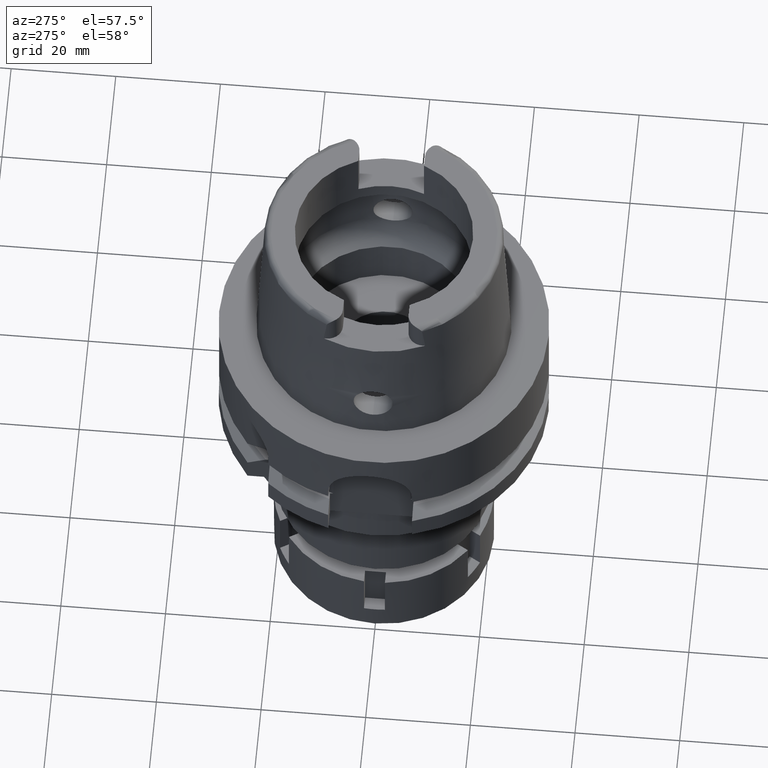
[diagram: clean part render]
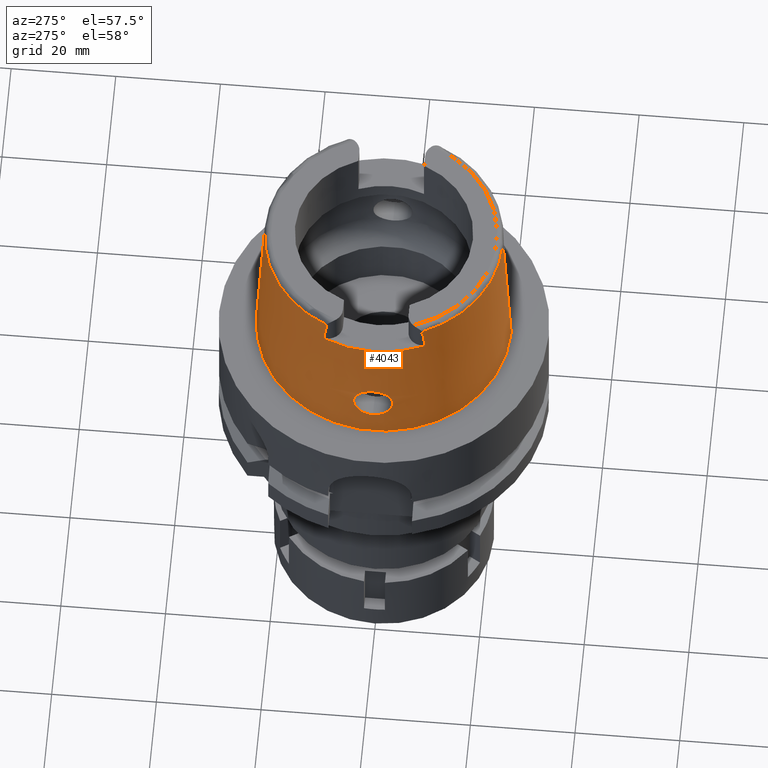
[diagram: same view with one face highlighted and labeled with its STEP entity id]
A machine part, auxiliary view. The second image highlights one B-rep face of the part: STEP entity #4043.
In plain terms, the highlighted conical surface has half-angle 2.862 deg.
Its self-contained STEP definition (entity closure, byte-faithful):
#27 = CARTESIAN_POINT ( 'NONE',  ( -23.59775797373913164, 2.427745545326599697, 11.85872722447998839 ) ) ;
#46 = CARTESIAN_POINT ( 'NONE',  ( -24.01190689559296487, -1.213919353043889204, 5.450948965164590376 ) ) ;
#62 = CIRCLE ( 'NONE', #866, 22.77198729362000407 ) ;
#80 = CARTESIAN_POINT ( 'NONE',  ( -23.69989770741069179, -3.406293780692954964, 7.431356053151114693 ) ) ;
#90 = CARTESIAN_POINT ( 'NONE',  ( -23.74869508637540605, 3.197769567628280907, 7.040704936146632065 ) ) ;
#100 = EDGE_LOOP ( 'NONE', ( #2054, #4834 ) ) ;
#108 = CARTESIAN_POINT ( 'NONE',  ( -23.54847303868381658, -3.728827836116629602, 9.467165310350663887 ) ) ;
#120 = CARTESIAN_POINT ( 'NONE',  ( -23.72480041490275937, 3.304328769427332890, 7.225829393539422441 ) ) ;
#134 = CARTESIAN_POINT ( 'NONE',  ( -23.92680087185595994, -2.112412527555870945, 5.899148787356807588 ) ) ;
#145 = CARTESIAN_POINT ( 'NONE',  ( -23.68040188426764914, 3.480546583495485624, 7.604162284873551947 ) ) ;
#171 = CARTESIAN_POINT ( 'NONE',  ( -23.54104556369676970, -3.659563287467198833, 9.827690557920400138 ) ) ;
#180 = CARTESIAN_POINT ( 'NONE',  ( -23.56641196841126629, 3.749853886215788634, 9.043351990039024457 ) ) ;
#201 = CARTESIAN_POINT ( 'NONE',  ( -23.91360907257481117, -2.217963938808438673, 5.973233638005119417 ) ) ;
#225 = CARTESIAN_POINT ( 'NONE',  ( -20.87000040551000168, 9.149999089200999691, 30.54560915664000120 ) ) ;
#324 = VERTEX_POINT ( 'NONE', #1424 ) ;
#326 = VERTEX_POINT ( 'NONE', #785 ) ;
#358 = CARTESIAN_POINT ( 'NONE',  ( -23.67751368057999883, 0.0000000000000000000, 12.75000000000000000 ) ) ;
#400 = CARTESIAN_POINT ( 'NONE',  ( -20.86974110883999955, 9.111383541117000107, 30.85992743331999932 ) ) ;
#404 = DIRECTION ( 'NONE',  ( 0.0000000000000000000, 0.0000000000000000000, 1.000000000000000000 ) ) ;
#438 = CARTESIAN_POINT ( 'NONE',  ( -23.53988099820365676, 3.456860661211169639, 10.45349897762422309 ) ) ;
#462 = DIRECTION ( 'NONE',  ( -0.9164655183265837390, 0.4001136759951928745, 0.0000000000000000000 ) ) ;
#466 = CARTESIAN_POINT ( 'NONE',  ( -23.62964415257435746, 1.849334539237185604, 12.26296964308983739 ) ) ;
#498 = CARTESIAN_POINT ( 'NONE',  ( -23.61896684875337016, 2.054516835787520979, 12.13712311954352963 ) ) ;
#544 = CARTESIAN_POINT ( 'NONE',  ( -24.00451827369238345, -1.317035685927220312, 5.488640041534582181 ) ) ;
#555 = CARTESIAN_POINT ( 'NONE',  ( -23.65632246882471534, 1.219335943685891044, 12.54726549148097092 ) ) ;
#576 = CARTESIAN_POINT ( 'NONE',  ( -23.69332558717249881, -3.432022098388039399, 7.488475779701393442 ) ) ;
#603 = CARTESIAN_POINT ( 'NONE',  ( -23.58010348627814778, -2.711651035510345142, 11.59036821712207121 ) ) ;
#614 = CARTESIAN_POINT ( 'NONE',  ( -23.84677145618585925, 2.675552940242365896, 6.372454394955683554 ) ) ;
#631 = CARTESIAN_POINT ( 'NONE',  ( -23.85340968005292339, -2.634642377015469883, 6.331439106887601476 ) ) ;
#641 = CARTESIAN_POINT ( 'NONE',  ( -23.54859604791295524, 3.719451920442709891, 9.492584576008937347 ) ) ;
#661 = ORIENTED_EDGE ( 'NONE', *, *, #1516, .T. ) ;
#665 = CARTESIAN_POINT ( 'NONE',  ( -23.87288622155884710, -2.508856855085745075, 6.212639671673876762 ) ) ;
#675 = CARTESIAN_POINT ( 'NONE',  ( -23.84154434376228693, 2.706786679693861331, 6.404577471627050045 ) ) ;
#681 = EDGE_CURVE ( 'NONE', #5530, #324, #2199, .T. ) ;
#684 = CARTESIAN_POINT ( 'NONE',  ( -20.87000040551000168, 9.149999089200999691, 30.54560915664000120 ) ) ;
#713 = CARTESIAN_POINT ( 'NONE',  ( -23.76173273863518887, 3.136281577579991708, 6.944204106628398598 ) ) ;
#763 = VECTOR ( 'NONE', #4128, 1000.000000000000000 ) ;
#785 = CARTESIAN_POINT ( 'NONE',  ( -20.86999859286000003, -9.150003160546999581, 30.54568941686000016 ) ) ;
#808 = CARTESIAN_POINT ( 'NONE',  ( -23.64626733998284891, -1.484411090021843238, 12.44373642061514751 ) ) ;
#866 = AXIS2_PLACEMENT_3D ( 'NONE', #4818, #5826, #462 ) ;
#908 = CARTESIAN_POINT ( 'NONE',  ( -23.54081653505988214, 3.424862081525379853, 10.52777868439436837 ) ) ;
#928 = CONICAL_SURFACE ( 'NONE', #3576, 23.54351105844999736, 0.04996004983832824653 ) ;
#937 = EDGE_CURVE ( 'NONE', #4990, #326, #1977, .T. ) ;
#942 = CARTESIAN_POINT ( 'NONE',  ( -23.67508314733208152, 0.4619648136336231836, 12.72949776466835736 ) ) ;
#975 = CARTESIAN_POINT ( 'NONE',  ( -23.67751368057999883, 0.0000000000000000000, 12.75000000000000000 ) ) ;
#983 = VERTEX_POINT ( 'NONE', #4564 ) ;
#1023 = CARTESIAN_POINT ( 'NONE',  ( -23.58295899954110553, -2.665682394324190074, 11.63754559762390883 ) ) ;
#1032 = CARTESIAN_POINT ( 'NONE',  ( -23.61815227005513762, 2.069541605600100809, 12.12723175322824787 ) ) ;
#1051 = CARTESIAN_POINT ( 'NONE',  ( -23.96281994730522413, -1.801479661722859449, 5.701904982190190374 ) ) ;
#1061 = CARTESIAN_POINT ( 'NONE',  ( -23.65042134777188565, 3.583800842753772642, 7.894156665461492750 ) ) ;
#1085 = CARTESIAN_POINT ( 'NONE',  ( -23.57075840976709102, -3.749877562740661308, 8.957512812203232144 ) ) ;
#1094 = CARTESIAN_POINT ( 'NONE',  ( -23.79081012248967042, 2.991979308055356057, 6.736013378498567405 ) ) ;
#1107 = ORIENTED_EDGE ( 'NONE', *, *, #3567, .T. ) ;
#1112 = CARTESIAN_POINT ( 'NONE',  ( -23.54134867494268946, -3.395120649510174449, 10.60493006221446599 ) ) ;
#1124 = CARTESIAN_POINT ( 'NONE',  ( -23.59412255442523687, 3.731749809352381320, 8.557368366928194803 ) ) ;
#1144 = CARTESIAN_POINT ( 'NONE',  ( -23.88455823221683616, -2.429667416853058537, 6.142697509812659717 ) ) ;
#1159 = EDGE_CURVE ( 'NONE', #4553, #3650, #4171, .T. ) ;
#1182 = ORIENTED_EDGE ( 'NONE', *, *, #2889, .T. ) ;
#1193 = CARTESIAN_POINT ( 'NONE',  ( -23.95826030383174299, 1.839315099056775704, 5.729992566205553750 ) ) ;
#1253 = CARTESIAN_POINT ( 'NONE',  ( -23.64747930138287657, -1.454668867040706415, 12.45636802292790790 ) ) ;
#1287 = CARTESIAN_POINT ( 'NONE',  ( -23.67751368057999883, 0.0000000000000000000, 12.75000000000000000 ) ) ;
#1291 = CARTESIAN_POINT ( 'NONE',  ( -23.64450229660714342, -1.526862253479521314, 12.42526486415983200 ) ) ;
#1308 = CARTESIAN_POINT ( 'NONE',  ( 0.0000000000000000000, -22.77198729362000051, 30.85992712280000205 ) ) ;
#1310 = DIRECTION ( 'NONE',  ( 0.0000000000000000000, 0.04993926899645239476, -0.9987522562738468945 ) ) ;
#1323 = CARTESIAN_POINT ( 'NONE',  ( -23.63708552941740848, -1.694320109362133842, 12.34598878740318817 ) ) ;
#1364 = CARTESIAN_POINT ( 'NONE',  ( -20.86998013696999976, 9.136999223123000391, 30.65036981057000176 ) ) ;
#1403 = CARTESIAN_POINT ( 'NONE',  ( -23.57119924468446470, 2.847048664713667243, 11.45604933355738453 ) ) ;
#1424 = CARTESIAN_POINT ( 'NONE',  ( 0.0000000000000000000, -24.31503482328999866, -9.841016890276999833E-13 ) ) ;
#1462 = CARTESIAN_POINT ( 'NONE',  ( -23.58865190001780121, 2.576166599541312330, 11.72534677341428555 ) ) ;
#1483 = CARTESIAN_POINT ( 'NONE',  ( -24.02806723117844356, -0.9468901176540025499, 5.369401716295763016 ) ) ;
#1516 = EDGE_CURVE ( 'NONE', #5094, #983, #4642, .T. ) ;
#1544 = CARTESIAN_POINT ( 'NONE',  ( -23.53946769932007399, -3.473333021223985018, 10.41368204611655379 ) ) ;
#1554 = CARTESIAN_POINT ( 'NONE',  ( -20.87000000000000099, -9.517135092905938620, 27.56041024059991429 ) ) ;
#1556 = CARTESIAN_POINT ( 'NONE',  ( -23.88111044480121237, 2.468963980678963832, 6.163088631550712293 ) ) ;
#1576 = CARTESIAN_POINT ( 'NONE',  ( -23.85980626430299623, -2.594295092173394934, 6.292101929335008670 ) ) ;
#1586 = CARTESIAN_POINT ( 'NONE',  ( -23.67624913626536554, 3.495661767345506377, 7.642311138398337533 ) ) ;
#1589 = AXIS2_PLACEMENT_3D ( 'NONE', #3984, #3100, #2531 ) ;
#1606 = CARTESIAN_POINT ( 'NONE',  ( -23.69026369756172556, -3.443787795998899171, 7.515430262515181425 ) ) ;
#1634 = CARTESIAN_POINT ( 'NONE',  ( -23.85670766714192581, -2.613918213711194927, 6.311131274671911484 ) ) ;
#1646 = CARTESIAN_POINT ( 'NONE',  ( -23.55479327547596569, 3.737390765678723525, 9.313090726261769703 ) ) ;
#1671 = CARTESIAN_POINT ( 'NONE',  ( -23.53847542116189473, -3.577540822792909747, 10.12585323905479839 ) ) ;
#1683 = CARTESIAN_POINT ( 'NONE',  ( -23.74299677294256483, 3.223771325759192674, 7.084042403530297349 ) ) ;
#1711 = CARTESIAN_POINT ( 'NONE',  ( -23.61186887112750910, -2.183312196054325582, 12.04911367230123531 ) ) ;
#1764 = FACE_BOUND ( 'NONE', #100, .T. ) ;
#1799 = ORIENTED_EDGE ( 'NONE', *, *, #2059, .F. ) ;
#1882 = CARTESIAN_POINT ( 'NONE',  ( -23.59355722376973574, 2.497475313863300350, 11.79852030037116961 ) ) ;
#1888 = CARTESIAN_POINT ( 'NONE',  ( -20.86999931535000385, -9.702216590560999165, 26.00000000000000000 ) ) ;
#1912 = CARTESIAN_POINT ( 'NONE',  ( -23.53982377331130849, 3.458997495681231715, 10.44841216591147592 ) ) ;
#1923 = VERTEX_POINT ( 'NONE', #6010 ) ;
#1941 = CARTESIAN_POINT ( 'NONE',  ( -23.65246779500185070, 1.326275148727239506, 12.50790085083015768 ) ) ;
#1961 = CARTESIAN_POINT ( 'NONE',  ( -24.05252611746999847, 7.753366781647998699E-14, 5.250000000000000000 ) ) ;
#1977 = B_SPLINE_CURVE_WITH_KNOTS ( 'NONE', 3,
 ( #2566, #1554, #4534, #3496 ),
 .UNSPECIFIED., .F., .F.,
 ( 4, 4 ),
 ( 0.0000000000000000000, 1.000000000000000000 ),
 .UNSPECIFIED. ) ;
#2004 = CARTESIAN_POINT ( 'NONE',  ( -23.64461437236908381, 1.526761454432969956, 12.42662714190988282 ) ) ;
#2016 = ORIENTED_EDGE ( 'NONE', *, *, #5666, .T. ) ;
#2022 = CARTESIAN_POINT ( 'NONE',  ( -23.57531695913113978, -3.747983181481950421, 8.873766180777488799 ) ) ;
#2033 = CARTESIAN_POINT ( 'NONE',  ( -23.53725252042777782, 3.558436557555896051, 10.20953801717776344 ) ) ;
#2054 = ORIENTED_EDGE ( 'NONE', *, *, #4248, .F. ) ;
#2056 = CARTESIAN_POINT ( 'NONE',  ( -23.53872199002130117, -3.511225032265722579, 10.31738930525980358 ) ) ;
#2059 = EDGE_CURVE ( 'NONE', #1923, #4680, #2717, .T. ) ;
#2066 = CARTESIAN_POINT ( 'NONE',  ( -23.91007640456058780, 2.258104401868341604, 5.995662690383179338 ) ) ;
#2081 = CARTESIAN_POINT ( 'NONE',  ( -24.00063287769294718, -1.368420082085253231, 5.508530190510424696 ) ) ;
#2091 = CARTESIAN_POINT ( 'NONE',  ( -23.99502022524470490, 1.439410086117101528, 5.537246417579616775 ) ) ;
#2111 = CARTESIAN_POINT ( 'NONE',  ( -23.56841132337187616, -2.902033238982096641, 11.37595038214082166 ) ) ;
#2120 = CARTESIAN_POINT ( 'NONE',  ( -24.05252611746999847, 7.753366781647998699E-14, 5.250000000000000000 ) ) ;
#2144 = CARTESIAN_POINT ( 'NONE',  ( -23.63552549805019254, -3.633792414373771873, 8.041404187604818787 ) ) ;
#2157 = CARTESIAN_POINT ( 'NONE',  ( -23.94702666403457769, 1.943808636826608760, 5.790677248495956775 ) ) ;
#2199 = LINE ( 'NONE', #2573, #763 ) ;
#2249 = CARTESIAN_POINT ( 'NONE',  ( -23.60997721109653114, -2.216884621247189546, 12.02467150346063107 ) ) ;
#2279 = CARTESIAN_POINT ( 'NONE',  ( -23.64699796039003132, -1.466524440999268153, 12.45135444233243405 ) ) ;
#2387 = CARTESIAN_POINT ( 'NONE',  ( -23.62295275098358971, 1.979966503867900629, 12.18502457327829802 ) ) ;
#2424 = CARTESIAN_POINT ( 'NONE',  ( 0.0000000000000000000, 0.0000000000000000000, -1.705302565823999926E-12 ) ) ;
#2425 = CARTESIAN_POINT ( 'NONE',  ( -23.62018029829158650, 2.032033767516928879, 12.15180833668392424 ) ) ;
#2441 = VERTEX_POINT ( 'NONE', #6163 ) ;
#2484 = CARTESIAN_POINT ( 'NONE',  ( -23.65928468122061545, 1.127668325276267591, 12.57699782189637538 ) ) ;
#2502 = CARTESIAN_POINT ( 'NONE',  ( -23.58583921198672684, -2.622161668423133918, 11.68366093338203626 ) ) ;
#2513 = CARTESIAN_POINT ( 'NONE',  ( -23.61767827611007675, 2.078240068529642937, 12.12145432776470066 ) ) ;
#2531 = DIRECTION ( 'NONE',  ( 0.0000000000000000000, -1.000000000000000000, 0.0000000000000000000 ) ) ;
#2533 = CARTESIAN_POINT ( 'NONE',  ( -23.65915102881362486, -3.560635832594042149, 7.793285209937169000 ) ) ;
#2559 = CARTESIAN_POINT ( 'NONE',  ( -23.82483530380760683, -2.812657864503246952, 6.507905412676812773 ) ) ;
#2566 = CARTESIAN_POINT ( 'NONE',  ( -20.86999931535000385, -9.702216590560999165, 26.00000000000000000 ) ) ;
#2568 = CARTESIAN_POINT ( 'NONE',  ( -23.97829057836414535, 1.633470564886788434, 5.623995557432585279 ) ) ;
#2573 = CARTESIAN_POINT ( 'NONE',  ( 0.0000000000000000000, -22.77198729362000051, 30.85992712280000205 ) ) ;
#2586 = EDGE_LOOP ( 'NONE', ( #5842, #1799, #1182, #661, #2016, #5691, #1107, #4731, #2995, #4987 ) ) ;
#2587 = CARTESIAN_POINT ( 'NONE',  ( -23.99707412886641933, -1.413975564982906885, 5.526786639389247746 ) ) ;
#2599 = CARTESIAN_POINT ( 'NONE',  ( -23.57900383441914727, 3.750885792483396486, 8.791424344041489647 ) ) ;
#2622 = CARTESIAN_POINT ( 'NONE',  ( -23.71988040529118180, -3.324348771831386884, 7.263623254055945111 ) ) ;
#2651 = CARTESIAN_POINT ( 'NONE',  ( 0.0000000000000000000, 0.0000000000000000000, 26.00000000000000000 ) ) ;
#2665 = CARTESIAN_POINT ( 'NONE',  ( -23.84422970750093995, 2.690768379691139245, 6.388042034043215800 ) ) ;
#2688 = DIRECTION ( 'NONE',  ( 0.0000000000000000000, 0.0000000000000000000, -1.000000000000000000 ) ) ;
#2717 = B_SPLINE_CURVE_WITH_KNOTS ( 'NONE', 3,
 ( #400, #3368, #5711, #1364, #5298, #4816 ),
 .UNSPECIFIED., .F., .F.,
 ( 4, 1, 1, 4 ),
 ( 0.0000000000000000000, 0.3333333333333000081, 0.6666666666667000474, 1.000000000000000000 ),
 .UNSPECIFIED. ) ;
#2718 = CARTESIAN_POINT ( 'NONE',  ( -20.86999859286000003, -9.145656142287998946, 30.58059766504999999 ) ) ;
#2771 = CARTESIAN_POINT ( 'NONE',  ( 0.0000000000000000000, 0.0000000000000000000, 15.42996356139999925 ) ) ;
#2778 = CARTESIAN_POINT ( 'NONE',  ( -20.86998097129999863, -9.136996582007000711, 30.65033329807000229 ) ) ;
#2861 = CARTESIAN_POINT ( 'NONE',  ( -23.54002377374665755, 3.451643664243647436, 10.46584478171144461 ) ) ;
#2889 = EDGE_CURVE ( 'NONE', #1923, #5094, #62, .T. ) ;
#2894 = CARTESIAN_POINT ( 'NONE',  ( -23.63240858149873347, 1.792967751592924763, 12.29417191840701840 ) ) ;
#2924 = CARTESIAN_POINT ( 'NONE',  ( -23.54724609022889226, 3.268063219628015936, 10.84264604770283391 ) ) ;
#2974 = CARTESIAN_POINT ( 'NONE',  ( -23.53831515551873466, -3.548795978417413899, 10.21464824710692554 ) ) ;
#2995 = ORIENTED_EDGE ( 'NONE', *, *, #937, .F. ) ;
#3007 = CARTESIAN_POINT ( 'NONE',  ( -23.89204321245595253, -2.376695377410006138, 6.098558333519781272 ) ) ;
#3010 = CARTESIAN_POINT ( 'NONE',  ( -24.05252611746999847, 7.753366781647998699E-14, 5.250000000000000000 ) ) ;
#3019 = CARTESIAN_POINT ( 'NONE',  ( -23.69266380586150333, 3.435371958374816792, 7.492861681607842606 ) ) ;
#3038 = CARTESIAN_POINT ( 'NONE',  ( -23.53947459368966122, -3.630433966417693892, 9.947536085877757728 ) ) ;
#3048 = CARTESIAN_POINT ( 'NONE',  ( -23.82278541895700741, 2.816403613994927557, 6.522709552009904321 ) ) ;
#3069 = CARTESIAN_POINT ( 'NONE',  ( -23.54586901624723083, -3.296059075966931928, 10.80505819867475914 ) ) ;
#3080 = CARTESIAN_POINT ( 'NONE',  ( -23.81211017205716729, 2.876100844121515010, 6.592862107193332655 ) ) ;
#3100 = DIRECTION ( 'NONE',  ( 0.0000000000000000000, 0.0000000000000000000, -1.000000000000000000 ) ) ;
#3102 = CARTESIAN_POINT ( 'NONE',  ( -23.58213766155223823, -2.678891203010167033, 11.62413363222947282 ) ) ;
#3152 = CARTESIAN_POINT ( 'NONE',  ( -23.67873618434382621, 3.486627013422315180, 7.619420586809540374 ) ) ;
#3177 = CARTESIAN_POINT ( 'NONE',  ( -23.63951594990803073, -1.641150212843339729, 12.37228612424546448 ) ) ;
#3207 = CARTESIAN_POINT ( 'NONE',  ( -23.66765979820592491, -0.9514556426012760193, 12.66616161187426215 ) ) ;
#3243 = CARTESIAN_POINT ( 'NONE',  ( -23.64288609526979812, -1.564449939299318304, 12.40819502356451487 ) ) ;
#3291 = CARTESIAN_POINT ( 'NONE',  ( -20.86989310983999957, -9.124125562992000837, 30.75513688797000000 ) ) ;
#3343 = CARTESIAN_POINT ( 'NONE',  ( -23.56126058233544285, 3.008732698343786538, 11.25157007861522374 ) ) ;
#3368 = CARTESIAN_POINT ( 'NONE',  ( -20.86979790994000084, 9.115619351651000457, 30.82499135253000233 ) ) ;
#3402 = CARTESIAN_POINT ( 'NONE',  ( -23.58452763326513590, 2.640904566649464158, 11.66240820727162486 ) ) ;
#3409 = CARTESIAN_POINT ( 'NONE',  ( -23.60615438934922139, 2.285413991288783642, 11.97564480336050785 ) ) ;
#3487 = CARTESIAN_POINT ( 'NONE',  ( -23.59427875411396514, -2.485399282265579490, 11.80875548293027677 ) ) ;
#3496 = CARTESIAN_POINT ( 'NONE',  ( -20.86999859286000003, -9.150003160546999581, 30.54568941686000016 ) ) ;
#3498 = CARTESIAN_POINT ( 'NONE',  ( -23.99206070560737558, 1.475639155021473137, 5.552492006683074521 ) ) ;
#3509 = B_SPLINE_CURVE_WITH_KNOTS ( 'NONE', 3,
 ( #975, #5770, #942, #4881, #4853, #2484, #555, #1941, #3811, #4409, #3938, #4350, #2004, #4795, #2894, #466, #4381, #2387, #2425, #498, #1032, #2513, #4441, #3409, #27, #1882, #1462, #6231, #5742, #3402, #1403, #3343, #3871, #2924, #4318, #5271, #908, #5802, #2861, #438, #1912, #2033, #5041, #3556, #641, #1646, #3996, #5975, #5488, #180, #2599, #1124, #3617, #5072, #1061, #5915, #4536, #1586, #3152, #145, #4566, #3019, #5889, #120, #5556, #1683, #90, #3528, #3586, #4025, #713, #3966, #1094, #3080, #3048, #4974, #675, #2665, #5007, #614, #1556, #2066, #2157, #1193, #5517, #2568, #4051, #5460, #3498, #5431, #4502, #2091, #6006, #4943, #2120 ),
 .UNSPECIFIED., .F., .F.,
 ( 4, 2, 2, 1, 1, 1, 2, 2, 2, 2, 1, 1, 2, 2, 2, 1, 1, 2, 2, 2, 2, 1, 1, 1, 2, 2, 2, 2, 1, 2, 2, 2, 2, 1, 1, 1, 2, 2, 2, 2, 1, 1, 2, 2, 2, 1, 1, 1, 2, 2, 2, 2, 2, 1, 1, 2, 2, 4 ),
 ( 0.0000000000000000000, 0.06250000000001575129, 0.09375000000002366163, 0.1093750000000276168, 0.1171875000000295458, 0.1210937500000304756, 0.1230468750000309336, 0.1250000000000313638, 0.1562500000000378864, 0.1718750000000409950, 0.1796875000000424105, 0.1835937500000429934, 0.1855468750000432987, 0.1875000000000435763, 0.2187500000000457412, 0.2343750000000468792, 0.2421875000000472955, 0.2460937500000474898, 0.2500000000000476286, 0.3125000000000552891, 0.3437500000000588973, 0.3593750000000607292, 0.3671875000000613953, 0.3710937500000615619, 0.3730468750000616174, 0.3750000000000616174, 0.4375000000000641709, 0.4687500000000654476, 0.4843750000000658917, 0.4921875000000659472, 0.5000000000000659472, 0.5625000000000653921, 0.5937500000000651701, 0.6093750000000650591, 0.6171875000000649480, 0.6210937500000648370, 0.6230468750000647260, 0.6250000000000647260, 0.6562500000000627276, 0.6718750000000616174, 0.6796875000000611733, 0.6835937500000609512, 0.6855468750000606182, 0.6875000000000603961, 0.7187500000000551781, 0.7343750000000524025, 0.7421875000000509592, 0.7460937500000502931, 0.7480468750000499600, 0.7500000000000496270, 0.8125000000000384137, 0.8437500000000327516, 0.8593750000000300870, 0.8671875000000287548, 0.8710937500000279776, 0.8730468750000276446, 0.8750000000000272005, 1.000000000000000000 ),
 .UNSPECIFIED. ) ;
#3518 = CARTESIAN_POINT ( 'NONE',  ( -23.53938528380133732, -3.476882866590553345, 10.40493668075330724 ) ) ;
#3528 = CARTESIAN_POINT ( 'NONE',  ( -23.75557587456738062, 3.165558305823700014, 6.989459191015979123 ) ) ;
#3546 = CARTESIAN_POINT ( 'NONE',  ( -23.99778025088773248, -1.405046430760785947, 5.523161378977547109 ) ) ;
#3556 = CARTESIAN_POINT ( 'NONE',  ( -23.54536092172206452, 3.701645643908817007, 9.612536568400813053 ) ) ;
#3567 = EDGE_CURVE ( 'NONE', #5530, #2441, #4325, .T. ) ;
#3576 = AXIS2_PLACEMENT_3D ( 'NONE', #2771, #5213, #6149 ) ;
#3577 = CARTESIAN_POINT ( 'NONE',  ( -23.59734232980184387, -3.721568558556493489, 8.524228445999172621 ) ) ;
#3586 = CARTESIAN_POINT ( 'NONE',  ( -23.75857466004687524, 3.151341675254559771, 6.967360578253566139 ) ) ;
#3617 = CARTESIAN_POINT ( 'NONE',  ( -23.62268955976633578, 3.665250443214180365, 8.197950101884185159 ) ) ;
#3650 = VERTEX_POINT ( 'NONE', #1287 ) ;
#3710 = CARTESIAN_POINT ( 'NONE',  ( -23.62924329719722394, -1.859219541161595490, 12.25902578870279491 ) ) ;
#3732 = VECTOR ( 'NONE', #1310, 1000.000000000000000 ) ;
#3734 = CARTESIAN_POINT ( 'NONE',  ( -20.86974104081999926, -9.111384060273000074, 30.85992587239999807 ) ) ;
#3762 = CARTESIAN_POINT ( 'NONE',  ( -20.86999859286000003, -9.150003160546999581, 30.54568941686000016 ) ) ;
#3808 = EDGE_CURVE ( 'NONE', #4990, #4654, #5927, .T. ) ;
#3811 = CARTESIAN_POINT ( 'NONE',  ( -23.65044076825016717, 1.379705075229260336, 12.48703116686539438 ) ) ;
#3818 = CARTESIAN_POINT ( 'NONE',  ( 0.0000000000000000000, 22.77198729362000051, 30.85992712280000205 ) ) ;
#3871 = CARTESIAN_POINT ( 'NONE',  ( -23.55026114387290193, 3.208539492499018042, 10.94490601117991524 ) ) ;
#3890 = CARTESIAN_POINT ( 'NONE',  ( -24.04786728198589429, -0.4701613043000081871, 5.271684815281512115 ) ) ;
#3938 = CARTESIAN_POINT ( 'NONE',  ( -23.64895254134934532, 1.417844970031336249, 12.47163987095328430 ) ) ;
#3954 = CARTESIAN_POINT ( 'NONE',  ( -23.57745576521715591, -2.754401583605481818, 11.54518515791845346 ) ) ;
#3966 = CARTESIAN_POINT ( 'NONE',  ( -23.77667734842093594, 3.064540664460845054, 6.835244559288858213 ) ) ;
#3978 = CIRCLE ( 'NONE', #4884, 24.31503482328999866 ) ;
#3984 = CARTESIAN_POINT ( 'NONE',  ( 0.0000000000000000000, 0.0000000000000000000, 30.85992712280000205 ) ) ;
#3986 = CARTESIAN_POINT ( 'NONE',  ( -23.53925647279070787, -3.482730705325227216, 10.39037706364205960 ) ) ;
#3996 = CARTESIAN_POINT ( 'NONE',  ( -23.55822802382664349, 3.744168925451787366, 9.223451393326936198 ) ) ;
#4015 = CARTESIAN_POINT ( 'NONE',  ( -23.53907386004414448, -3.491430382779570962, 10.36851894628756909 ) ) ;
#4025 = CARTESIAN_POINT ( 'NONE',  ( -23.76058493397860261, 3.141771321353614699, 6.952599126366829196 ) ) ;
#4042 = CARTESIAN_POINT ( 'NONE',  ( -23.57105811397857309, -2.858510333802730674, 11.42821544231886577 ) ) ;
#4043 = ADVANCED_FACE ( 'NONE', ( #6088, #1764 ), #928, .T. ) ;
#4051 = CARTESIAN_POINT ( 'NONE',  ( -23.98509113817073768, 1.557366539109160675, 5.588564454146936811 ) ) ;
#4077 = CARTESIAN_POINT ( 'NONE',  ( -23.70980915520115317, -3.366731599821545462, 7.346390361577376460 ) ) ;
#4124 = AXIS2_PLACEMENT_3D ( 'NONE', #2651, #2688, #4620 ) ;
#4128 = DIRECTION ( 'NONE',  ( 0.0000000000000000000, -0.04993926899645239476, -0.9987522562738468945 ) ) ;
#4145 = CARTESIAN_POINT ( 'NONE',  ( -23.60632261676766319, -2.281251443600128770, 11.97678557544020173 ) ) ;
#4171 = B_SPLINE_CURVE_WITH_KNOTS ( 'NONE', 3,
 ( #1961, #5731, #3890, #5819, #1483, #4399, #46, #544, #2081, #5997, #3546, #2587, #5906, #1051, #134, #201, #3007, #1144, #665, #4998, #1576, #1634, #4932, #631, #2559, #5478, #5935, #4492, #2622, #4077, #80, #576, #1606, #2533, #2144, #5450, #3577, #5031, #4431, #2022, #4526, #1085, #4459, #108, #171, #3038, #1671, #2974, #2056, #4015, #3986, #3518, #1544, #1112, #3069, #4965, #4900, #2111, #4042, #5965, #3954, #603, #5508, #3102, #5879, #4558, #5385, #1023, #2502, #3487, #5419, #5099, #4145, #2249, #1711, #4182, #5064, #5166, #5129, #5670, #6162, #3710, #1323, #3177, #3243, #1291, #808, #2279, #1253, #4687, #3207, #5545, #358 ),
 .UNSPECIFIED., .F., .F.,
 ( 4, 2, 2, 1, 1, 1, 2, 2, 2, 2, 2, 1, 1, 2, 2, 2, 2, 1, 2, 2, 2, 2, 1, 2, 2, 2, 2, 1, 1, 1, 2, 2, 2, 2, 2, 1, 1, 1, 1, 2, 2, 2, 2, 2, 1, 1, 1, 2, 2, 2, 2, 1, 1, 2, 2, 4 ),
 ( 0.0000000000000000000, 0.06250000000033015257, 0.09375000000049525661, 0.1093750000005778156, 0.1171875000006190742, 0.1210937500006397383, 0.1230468750006500495, 0.1250000000006603607, 0.1875000000009883483, 0.2187500000011523560, 0.2343750000012344015, 0.2421875000012754520, 0.2460937500012959633, 0.2480468750013061774, 0.2500000000013163914, 0.3125000000016398549, 0.3437500000018016144, 0.3593750000018824942, 0.3671875000019229618, 0.3750000000019633739, 0.4375000000022873370, 0.4687500000024493740, 0.4843750000025304203, 0.4921875000025707214, 0.5000000000026109115, 0.5625000000029362068, 0.5937500000030986325, 0.6093750000031797898, 0.6171875000032202019, 0.6210937500032406300, 0.6230468750032508440, 0.6250000000032609471, 0.6875000000035743630, 0.7187500000037310155, 0.7343750000038096193, 0.7421875000038486991, 0.7460937500038682391, 0.7480468750038780090, 0.7490234375038828940, 0.7495117187538853365, 0.7500000000038877790, 0.7812500000034094949, 0.7968750000031703529, 0.8046875000030507818, 0.8085937500029910519, 0.8105468750029610758, 0.8115234375029459768, 0.8120117187529385383, 0.8125000000029309888, 0.8437500000024463764, 0.8593750000022040147, 0.8671875000020827784, 0.8710937500020220492, 0.8730468750019915181, 0.8750000000019608759, 1.000000000000000000 ),
 .UNSPECIFIED. ) ;
#4182 = CARTESIAN_POINT ( 'NONE',  ( -23.61418844284676766, -2.141631470985013941, 12.07835975123065353 ) ) ;
#4248 = EDGE_CURVE ( 'NONE', #3650, #4553, #3509, .T. ) ;
#4318 = CARTESIAN_POINT ( 'NONE',  ( -23.54370064852809818, 3.347730061273573643, 10.69070217749765384 ) ) ;
#4325 = CIRCLE ( 'NONE', #1589, 22.77198729362000051 ) ;
#4350 = CARTESIAN_POINT ( 'NONE',  ( -23.64858058843223887, 1.427239590265353852, 12.46778420395721909 ) ) ;
#4381 = CARTESIAN_POINT ( 'NONE',  ( -23.62522811689584046, 1.936060684021648992, 12.21174350006674381 ) ) ;
#4399 = CARTESIAN_POINT ( 'NONE',  ( -24.01758485133920118, -1.125040710896721752, 5.422204645740376527 ) ) ;
#4409 = CARTESIAN_POINT ( 'NONE',  ( -23.64955068039081709, 1.402590976808237633, 12.47783068944015739 ) ) ;
#4431 = CARTESIAN_POINT ( 'NONE',  ( -23.58020932985808216, -3.744765891352818343, 8.787788444723597436 ) ) ;
#4441 = CARTESIAN_POINT ( 'NONE',  ( -23.61174522065098103, 2.186694791803903470, 12.04892521962162277 ) ) ;
#4459 = CARTESIAN_POINT ( 'NONE',  ( -23.55704410862953324, -3.750785749875518160, 9.225538567843443616 ) ) ;
#4492 = CARTESIAN_POINT ( 'NONE',  ( -23.74023597520397288, -3.236060171669699503, 7.101155507193507077 ) ) ;
#4502 = CARTESIAN_POINT ( 'NONE',  ( -23.99461080111854727, 1.444463268306015680, 5.539353888456642672 ) ) ;
#4526 = CARTESIAN_POINT ( 'NONE',  ( -23.57218132160870994, -3.749469307460943757, 8.930769817309132108 ) ) ;
#4534 = CARTESIAN_POINT ( 'NONE',  ( -20.87000000000000099, -9.333063949567938167, 29.07564004621991671 ) ) ;
#4536 = CARTESIAN_POINT ( 'NONE',  ( -23.67052653673335172, 3.516143967181403429, 7.695739202663061995 ) ) ;
#4553 = VERTEX_POINT ( 'NONE', #3010 ) ;
#4558 = CARTESIAN_POINT ( 'NONE',  ( -23.58262807820149831, -2.671003097016527494, 11.63215643966388768 ) ) ;
#4564 = CARTESIAN_POINT ( 'NONE',  ( 0.0000000000000000000, 24.31503482328999866, -1.705302565823999926E-12 ) ) ;
#4566 = CARTESIAN_POINT ( 'NONE',  ( -23.68141754100734175, 3.476818163838278242, 7.594910168800037553 ) ) ;
#4574 = CARTESIAN_POINT ( 'NONE',  ( -20.87000000000000099, 9.332993010209039042, 29.07609872868878398 ) ) ;
#4580 = CARTESIAN_POINT ( 'NONE',  ( -20.87000000000000099, 9.702213322398998585, 26.00000000000000000 ) ) ;
#4613 = CARTESIAN_POINT ( 'NONE',  ( -20.86979783655000276, -9.115619586573998845, 30.82499216257000185 ) ) ;
#4620 = DIRECTION ( 'NONE',  ( -0.9068002397791221636, -0.4215605829967106200, 0.0000000000000000000 ) ) ;
#4637 = B_SPLINE_CURVE_WITH_KNOTS ( 'NONE', 3,
 ( #3762, #2718, #2778, #3291, #4613, #3734 ),
 .UNSPECIFIED., .F., .F.,
 ( 4, 1, 1, 4 ),
 ( 0.0000000000000000000, 0.3333333333333000081, 0.6666666666667000474, 1.000000000000000000 ),
 .UNSPECIFIED. ) ;
#4640 = CARTESIAN_POINT ( 'NONE',  ( -20.87000000000000099, 9.702213322398998585, 26.00000000000000000 ) ) ;
#4642 = LINE ( 'NONE', #4705, #3732 ) ;
#4654 = VERTEX_POINT ( 'NONE', #4580 ) ;
#4680 = VERTEX_POINT ( 'NONE', #225 ) ;
#4687 = CARTESIAN_POINT ( 'NONE',  ( -23.64764409963357039, -1.450596009578489554, 12.45808334674160456 ) ) ;
#4705 = CARTESIAN_POINT ( 'NONE',  ( 0.0000000000000000000, 22.77198729362000051, 30.85992712280000205 ) ) ;
#4731 = ORIENTED_EDGE ( 'NONE', *, *, #4837, .F. ) ;
#4795 = CARTESIAN_POINT ( 'NONE',  ( -23.64016308368803365, 1.629062238834461107, 12.37992073384834590 ) ) ;
#4816 = CARTESIAN_POINT ( 'NONE',  ( -20.87000040551000168, 9.149999089200999691, 30.54560915664000120 ) ) ;
#4818 = CARTESIAN_POINT ( 'NONE',  ( 0.0000000000000000000, 0.0000000000000000000, 30.85992712280000205 ) ) ;
#4821 = DIRECTION ( 'NONE',  ( 0.0000000000000000000, 1.000000000000000000, 0.0000000000000000000 ) ) ;
#4834 = ORIENTED_EDGE ( 'NONE', *, *, #1159, .F. ) ;
#4837 = EDGE_CURVE ( 'NONE', #326, #2441, #4637, .T. ) ;
#4853 = CARTESIAN_POINT ( 'NONE',  ( -23.66475338102843651, 0.9446523170223202204, 12.63129853890802501 ) ) ;
#4881 = CARTESIAN_POINT ( 'NONE',  ( -23.66779154758832959, 0.8230753636026337805, 12.66060967767062451 ) ) ;
#4884 = AXIS2_PLACEMENT_3D ( 'NONE', #2424, #404, #4821 ) ;
#4900 = CARTESIAN_POINT ( 'NONE',  ( -23.56097651997859899, -3.025860293739869977, 11.21910298025499131 ) ) ;
#4932 = CARTESIAN_POINT ( 'NONE',  ( -23.85463267444497149, -2.626987422220965485, 6.323898258004478024 ) ) ;
#4943 = CARTESIAN_POINT ( 'NONE',  ( -24.05252611746999847, 0.4684859328690584301, 5.250000000000011546 ) ) ;
#4965 = CARTESIAN_POINT ( 'NONE',  ( -23.55669407561891404, -3.099414869699844921, 11.11448873222352418 ) ) ;
#4974 = CARTESIAN_POINT ( 'NONE',  ( -23.83528401237667182, 2.743806364395127595, 6.443503249518157006 ) ) ;
#4987 = ORIENTED_EDGE ( 'NONE', *, *, #3808, .T. ) ;
#4990 = VERTEX_POINT ( 'NONE', #1888 ) ;
#4998 = CARTESIAN_POINT ( 'NONE',  ( -23.86693908115503859, -2.548383845730245234, 6.248543790155235200 ) ) ;
#5007 = CARTESIAN_POINT ( 'NONE',  ( -23.84602047545413228, 2.680055776295053871, 6.377051291958173884 ) ) ;
#5031 = CARTESIAN_POINT ( 'NONE',  ( -23.58566844391492978, -3.738483755202423708, 8.700463710052112276 ) ) ;
#5041 = CARTESIAN_POINT ( 'NONE',  ( -23.53834461970278014, 3.630190965765683675, 9.971462626590790634 ) ) ;
#5064 = CARTESIAN_POINT ( 'NONE',  ( -23.61537638746051471, -2.120152605418764935, 12.09314594306011514 ) ) ;
#5072 = CARTESIAN_POINT ( 'NONE',  ( -23.63319338243535839, 3.636791010734223395, 8.076786596443518818 ) ) ;
#5094 = VERTEX_POINT ( 'NONE', #3818 ) ;
#5099 = CARTESIAN_POINT ( 'NONE',  ( -23.60405785485920660, -2.320459489276679665, 11.94619744989802435 ) ) ;
#5129 = CARTESIAN_POINT ( 'NONE',  ( -23.61623631691842107, -2.104549925655583742, 12.10376930990452671 ) ) ;
#5166 = CARTESIAN_POINT ( 'NONE',  ( -23.61589154059943141, -2.110809459529651821, 12.09951572737456793 ) ) ;
#5213 = DIRECTION ( 'NONE',  ( 0.0000000000000000000, 0.0000000000000000000, -1.000000000000000000 ) ) ;
#5271 = CARTESIAN_POINT ( 'NONE',  ( -23.54217221236901736, 3.385160905467721637, 10.61508736053493607 ) ) ;
#5298 = CARTESIAN_POINT ( 'NONE',  ( -20.87000040551000168, 9.145651821175999174, 30.58051936382999969 ) ) ;
#5385 = CARTESIAN_POINT ( 'NONE',  ( -23.58282284132628703, -2.667871502373984516, 11.63532951433352558 ) ) ;
#5419 = CARTESIAN_POINT ( 'NONE',  ( -23.59777847206617452, -2.427706747304814172, 11.85957804050352138 ) ) ;
#5431 = CARTESIAN_POINT ( 'NONE',  ( -23.99359584000796630, 1.456923154254782471, 5.544580985550123131 ) ) ;
#5450 = CARTESIAN_POINT ( 'NONE',  ( -23.60613246409072374, -3.704487790585522689, 8.404614813773232385 ) ) ;
#5460 = CARTESIAN_POINT ( 'NONE',  ( -23.98838987619645735, 1.519488827766984018, 5.571448253474248880 ) ) ;
#5478 = CARTESIAN_POINT ( 'NONE',  ( -23.79650614581035839, -2.969657894488248129, 6.697439310425810532 ) ) ;
#5488 = CARTESIAN_POINT ( 'NONE',  ( -23.56490498569043268, 3.749374343894374739, 9.074675979309965612 ) ) ;
#5508 = CARTESIAN_POINT ( 'NONE',  ( -23.58145499508198029, -2.689877779969195526, 11.61289083013962475 ) ) ;
#5517 = CARTESIAN_POINT ( 'NONE',  ( -23.97348609348621196, 1.684672242390714558, 5.649214778833094641 ) ) ;
#5530 = VERTEX_POINT ( 'NONE', #1308 ) ;
#5545 = CARTESIAN_POINT ( 'NONE',  ( -23.67751368058000949, -0.4549623701201873649, 12.75000000000000178 ) ) ;
#5553 = EDGE_CURVE ( 'NONE', #4680, #4654, #6256, .T. ) ;
#5556 = CARTESIAN_POINT ( 'NONE',  ( -23.73186615276676648, 3.273736417173374491, 7.169827833262282901 ) ) ;
#5666 = EDGE_CURVE ( 'NONE', #983, #324, #3978, .T. ) ;
#5670 = CARTESIAN_POINT ( 'NONE',  ( -23.61647845754352559, -2.100147986451001092, 12.10674809268725305 ) ) ;
#5691 = ORIENTED_EDGE ( 'NONE', *, *, #681, .F. ) ;
#5711 = CARTESIAN_POINT ( 'NONE',  ( -20.86989332434000133, 9.124125752762001440, 30.75512690556999829 ) ) ;
#5731 = CARTESIAN_POINT ( 'NONE',  ( -24.05252611746999492, -0.2324953035329989370, 5.249999999999994671 ) ) ;
#5742 = CARTESIAN_POINT ( 'NONE',  ( -23.58514629663808293, 2.631267668189649189, 11.67192179327764201 ) ) ;
#5770 = CARTESIAN_POINT ( 'NONE',  ( -23.67751368058000594, 0.2261742822214473092, 12.75000000000000533 ) ) ;
#5802 = CARTESIAN_POINT ( 'NONE',  ( -23.54024557095775805, 3.443751127963220693, 10.48438368763808626 ) ) ;
#5819 = CARTESIAN_POINT ( 'NONE',  ( -24.03389077553358533, -0.8276023930290448138, 5.340451432045409952 ) ) ;
#5826 = DIRECTION ( 'NONE',  ( 0.0000000000000000000, 0.0000000000000000000, -1.000000000000000000 ) ) ;
#5842 = ORIENTED_EDGE ( 'NONE', *, *, #5553, .F. ) ;
#5879 = CARTESIAN_POINT ( 'NONE',  ( -23.58243171405413108, -2.674161204618041410, 11.62894787298107602 ) ) ;
#5889 = CARTESIAN_POINT ( 'NONE',  ( -23.70466722807033477, 3.388795822536338154, 7.389520971159311280 ) ) ;
#5906 = CARTESIAN_POINT ( 'NONE',  ( -23.98209090107912900, -1.602127808557914701, 5.603745607369020831 ) ) ;
#5915 = CARTESIAN_POINT ( 'NONE',  ( -23.65940338827340028, 3.554731957922215191, 7.802623698113239747 ) ) ;
#5927 = CIRCLE ( 'NONE', #4124, 23.01499170873999134 ) ;
#5935 = CARTESIAN_POINT ( 'NONE',  ( -23.75409044812282744, -3.172503867728634130, 6.996937933035014545 ) ) ;
#5965 = CARTESIAN_POINT ( 'NONE',  ( -23.57528108410206258, -2.789693114556339282, 11.50625521790781569 ) ) ;
#5975 = CARTESIAN_POINT ( 'NONE',  ( -23.56216697403108284, 3.747718344157432657, 9.134133088405302914 ) ) ;
#5997 = CARTESIAN_POINT ( 'NONE',  ( -23.99892676118265911, -1.390401503050479937, 5.517278947497817221 ) ) ;
#6006 = CARTESIAN_POINT ( 'NONE',  ( -24.03355510147814655, 0.9596884075923395319, 5.339030966059405081 ) ) ;
#6010 = CARTESIAN_POINT ( 'NONE',  ( -20.86974110883999955, 9.111383541117000107, 30.85992743331999932 ) ) ;
#6054 = CARTESIAN_POINT ( 'NONE',  ( -20.87000000000000099, 9.517059732110039860, 27.56089567647545380 ) ) ;
#6088 = FACE_OUTER_BOUND ( 'NONE', #2586, .T. ) ;
#6149 = DIRECTION ( 'NONE',  ( 0.0000000000000000000, -1.000000000000000000, 0.0000000000000000000 ) ) ;
#6162 = CARTESIAN_POINT ( 'NONE',  ( -23.62328051471932966, -1.976400316026319715, 12.19029057713434661 ) ) ;
#6163 = CARTESIAN_POINT ( 'NONE',  ( -20.86974104081999926, -9.111384060273000074, 30.85992587239999807 ) ) ;
#6231 = CARTESIAN_POINT ( 'NONE',  ( -23.58654866509819925, 2.609306262964795842, 11.69337268811892017 ) ) ;
#6256 = B_SPLINE_CURVE_WITH_KNOTS ( 'NONE', 3,
 ( #684, #4574, #6054, #4640 ),
 .UNSPECIFIED., .F., .F.,
 ( 4, 4 ),
 ( 0.0000000000000000000, 1.000000000000000000 ),
 .UNSPECIFIED. ) ;